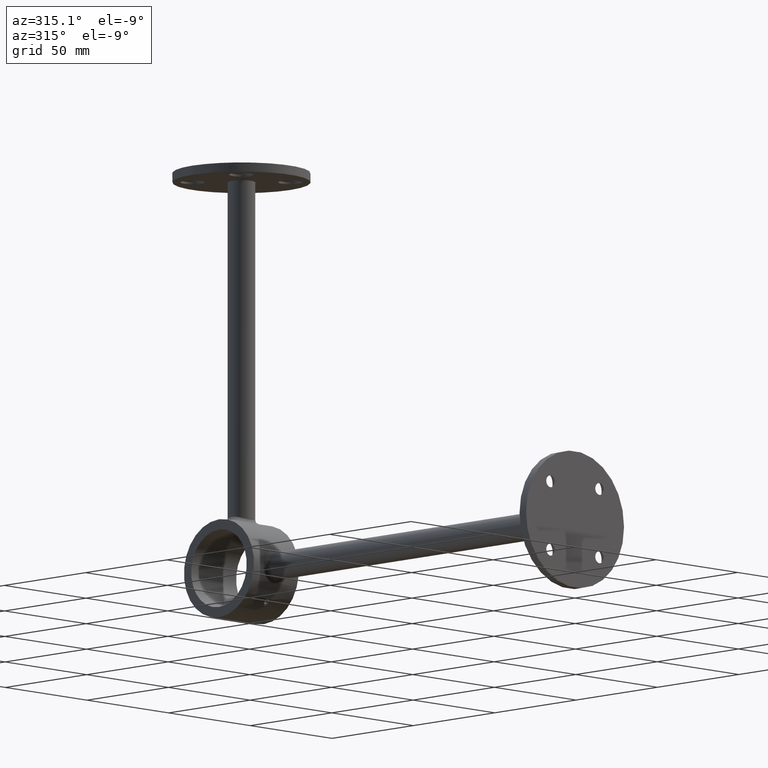
[diagram: clean part render]
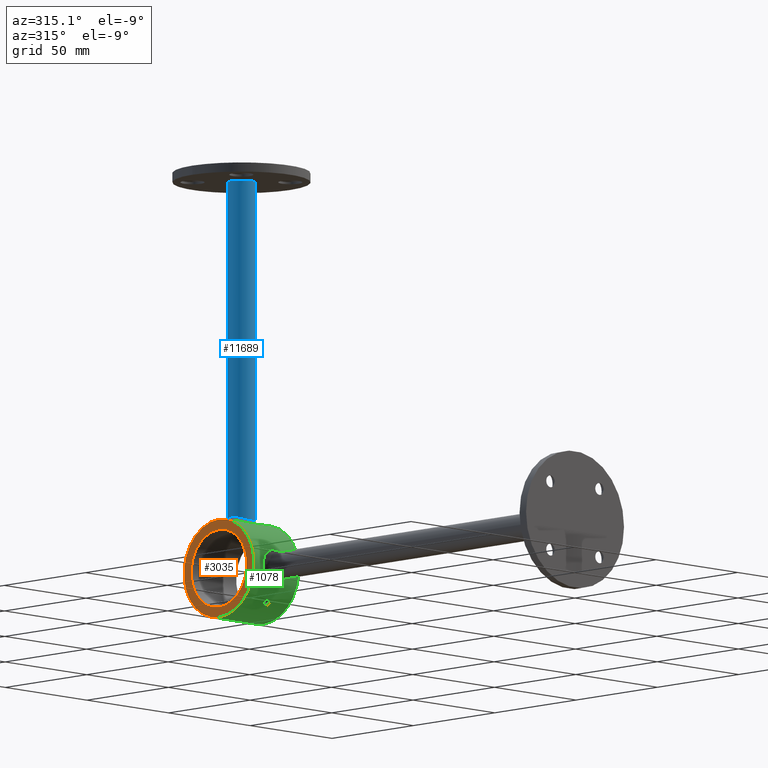
[diagram: same view with three faces highlighted in distinct colors, each labeled with its STEP entity id]
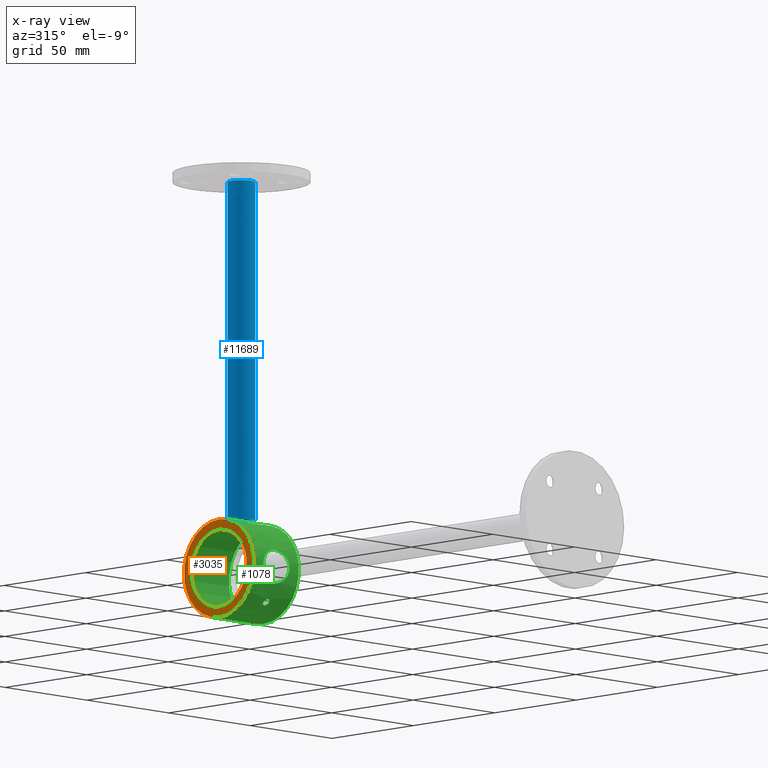
[diagram: x-ray of the same camera — body ghosted, the three highlighted faces saturated]
A machine part, auxiliary view with three faces highlighted in distinct colors.
The next image is the same camera in x-ray (body ghosted, the three faces saturated) — at least one of them is partly hidden behind the body in this view.
Their STEP definitions:

[orange] entity #3035 — the highlighted planar face has unit normal (1, 0, 0).
#309 = AXIS2_PLACEMENT_3D ( 'NONE', #2673, #1532, #3626 ) ;
#839 = DIRECTION ( 'NONE',  ( 1.000000000000000000, 0.000000000000000000, -0.000000000000000000 ) ) ;
#1532 = DIRECTION ( 'NONE',  ( 0.000000000000000000, 0.000000000000000000, 1.000000000000000000 ) ) ;
#2007 = PLANE ( 'NONE',  #3362 ) ;
#2673 = CARTESIAN_POINT ( 'NONE',  ( 0.000000000000000000, 205.0000000000000000, -13.75000000000000000 ) ) ;
#3035 = ADVANCED_FACE ( 'NONE', ( #4517, #12636 ), #2007, .F. ) ;
#3310 = AXIS2_PLACEMENT_3D ( 'NONE', #3590, #10437, #12714 ) ;
#3362 = AXIS2_PLACEMENT_3D ( 'NONE', #10615, #3818, #839 ) ;
#3590 = CARTESIAN_POINT ( 'NONE',  ( 0.000000000000000000, 205.0000000000000000, -13.75000000000000000 ) ) ;
#3626 = DIRECTION ( 'NONE',  ( 1.000000000000000000, 0.000000000000000000, 0.000000000000000000 ) ) ;
#3818 = DIRECTION ( 'NONE',  ( 0.000000000000000000, 0.000000000000000000, 1.000000000000000000 ) ) ;
#3939 = EDGE_CURVE ( 'NONE', #11559, #11559, #8996, .T. ) ;
#4055 = ORIENTED_EDGE ( 'NONE', *, *, #7275, .F. ) ;
#4169 = CIRCLE ( 'NONE', #3310, 17.05000000000000071 ) ;
#4517 = FACE_BOUND ( 'NONE', #5434, .T. ) ;
#4653 = CARTESIAN_POINT ( 'NONE',  ( 21.49999999999999645, 205.0000000000000000, -13.75000000000000000 ) ) ;
#5434 = EDGE_LOOP ( 'NONE', ( #4055 ) ) ;
#5611 = CARTESIAN_POINT ( 'NONE',  ( -17.05000000000000071, 205.0000000000000000, -13.75000000000000000 ) ) ;
#6956 = ORIENTED_EDGE ( 'NONE', *, *, #3939, .F. ) ;
#7275 = EDGE_CURVE ( 'NONE', #10831, #10831, #4169, .T. ) ;
#8996 = CIRCLE ( 'NONE', #309, 21.49999999999999645 ) ;
#10437 = DIRECTION ( 'NONE',  ( 0.000000000000000000, 0.000000000000000000, -1.000000000000000000 ) ) ;
#10615 = CARTESIAN_POINT ( 'NONE',  ( 0.000000000000000000, 205.0000000000000000, -13.75000000000000000 ) ) ;
#10831 = VERTEX_POINT ( 'NONE', #5611 ) ;
#11325 = EDGE_LOOP ( 'NONE', ( #6956 ) ) ;
#11559 = VERTEX_POINT ( 'NONE', #4653 ) ;
#12636 = FACE_OUTER_BOUND ( 'NONE', #11325, .T. ) ;
#12714 = DIRECTION ( 'NONE',  ( -1.000000000000000000, 0.000000000000000000, 0.000000000000000000 ) ) ;

[blue] entity #11689 — the highlighted cylindrical surface (bore or boss wall) has radius 6 mm, axis along (-0, -0, 1).
#182 = CARTESIAN_POINT ( 'NONE',  ( -23.23200228044686000, 207.6792922703322404, 5.382930273431088430 ) ) ;
#220 = CARTESIAN_POINT ( 'NONE',  ( -22.11541549007051799, 210.9609944445898009, 0.7900735914561537454 ) ) ;
#307 = CARTESIAN_POINT ( 'NONE',  ( -22.37738783331207415, 199.6152716029880878, 2.675227745755921038 ) ) ;
#340 = CARTESIAN_POINT ( 'NONE',  ( -23.41187318136881856, 206.5742168623327188, -5.803446260350071384 ) ) ;
#391 = CARTESIAN_POINT ( 'NONE',  ( -23.23217460008701352, 202.3215546612634910, 5.383346539315551738 ) ) ;
#432 = CARTESIAN_POINT ( 'NONE',  ( -23.40821139650064353, 203.4321262906741481, 5.794919355474750233 ) ) ;
#599 = DIRECTION ( 'NONE',  ( 0.000000000000000000, 0.000000000000000000, 1.000000000000000000 ) ) ;
#1278 = CARTESIAN_POINT ( 'NONE',  ( -22.45721954899259742, 210.1968667763163978, -3.023624983693989243 ) ) ;
#1330 = CARTESIAN_POINT ( 'NONE',  ( -23.50445160989924531, 204.9973065693626495, -6.009785875373305331 ) ) ;
#1371 = CARTESIAN_POINT ( 'NONE',  ( -23.42965722650200533, 203.6236061138068578, 5.843324338433294685 ) ) ;
#1412 = CARTESIAN_POINT ( 'NONE',  ( -23.47786673633194710, 205.7900687532467430, -5.951089741580165793 ) ) ;
#1466 = CARTESIAN_POINT ( 'NONE',  ( -22.27780476482568517, 199.3894893423889130, 2.135463886640331044 ) ) ;
#1841 = EDGE_CURVE ( 'NONE', #8493, #8493, #8310, .T. ) ;
#2154 = CARTESIAN_POINT ( 'NONE',  ( -23.40814436953775513, 206.5684359642764889, 5.794767224328479571 ) ) ;
#2189 = CARTESIAN_POINT ( 'NONE',  ( -22.13470285170360086, 210.9201552088591427, -0.9952896390835559437 ) ) ;
#2236 = CARTESIAN_POINT ( 'NONE',  ( -22.98999648611217594, 208.6667347475418239, 4.765094731131961581 ) ) ;
#2283 = CARTESIAN_POINT ( 'NONE',  ( -22.45572308530516281, 199.7993644303828376, 3.017833618714270028 ) ) ;
#2319 = CARTESIAN_POINT ( 'NONE',  ( -23.23264247369581170, 202.3240781013658705, -5.384462246671367858 ) ) ;
#2363 = CARTESIAN_POINT ( 'NONE',  ( -23.49999999999998934, 204.5975847272450778, 6.000000000000000000 ) ) ;
#2414 = CARTESIAN_POINT ( 'NONE',  ( -22.62757746435094930, 200.2404886355729730, -3.658544718912730254 ) ) ;
#2454 = CARTESIAN_POINT ( 'NONE',  ( -22.90024714449507570, 208.9666338140890218, -4.518577991468825772 ) ) ;
#2537 = B_SPLINE_CURVE_WITH_KNOTS ( 'NONE', 3,
 ( #10911, #6164, #10017, #11924, #2154, #6078, #9073, #182, #8016, #2236, #4210, #9971, #11065, #12042, #6204, #5100, #9001, #11962, #6124, #220, #8060, #6963, #9892, #7943, #2189, #3180, #4165, #8912, #1278, #8276, #7207, #11235, #3262, #2454, #12121, #3430, #8309, #12169, #340, #5406, #1412, #3313, #1330, #5323, #8185, #9301, #12219, #4294, #2319, #7173, #9203, #10278, #4430, #3357, #2414, #9165, #11280, #6253, #6374, #3394, #7341, #12256, #6296, #8143, #6333, #12087, #11154, #1466, #307, #2283, #5275, #9123, #10104, #4377, #4254, #11108, #5230, #391, #10141, #7247, #432, #1371, #8233, #2363, #5368 ),
 .UNSPECIFIED., .T., .F.,
 ( 4, 2, 2, 2, 2, 2, 2, 2, 2, 2, 2, 2, 2, 2, 2, 2, 2, 2, 2, 2, 2, 1, 2, 2, 2, 2, 2, 2, 2, 2, 2, 2, 2, 2, 2, 2, 2, 2, 2, 2, 2, 2, 4 ),
 ( 0.000000000000000000, 0.001187452307671914070, 0.001781178461507911112, 0.002374904615343908371, 0.003562356923015901587, 0.004749809230687894804, 0.005937261538359888888, 0.007124713846031881237, 0.007718439999867878279, 0.008312166153703875321, 0.009499618461375885017, 0.01009334461521188900, 0.01068707076904789471, 0.01187452307671990441, 0.01306197538439191237, 0.01365570153822791635, 0.01424942769206391860, 0.01543687999973592483, 0.01662433230740793105, 0.01781178461507993901, 0.01840551076891594473, 0.01899923692275194698, 0.01959296307658795269, 0.02018668923042395147, 0.02137414153809604270, 0.02256159384576812699, 0.02374904615344021822, 0.02434277230727625516, 0.02493649846111229904, 0.02612395076878442843, 0.02731140307645655782, 0.02849885538412868374, 0.02968630769180081660, 0.03028003384563688130, 0.03087375999947293906, 0.03206121230714507192, 0.03324866461481720131, 0.03384239076865326601, 0.03443611692248933764, 0.03562356923016146704, 0.03621729538399753173, 0.03681102153783360337, 0.03799847384550564949 ),
 .UNSPECIFIED. ) ;
#2697 = CYLINDRICAL_SURFACE ( 'NONE', #11121, 6.000000000000001776 ) ;
#3180 = CARTESIAN_POINT ( 'NONE',  ( -22.18997322824790430, 210.8030462785146710, -1.574804921255523515 ) ) ;
#3262 = CARTESIAN_POINT ( 'NONE',  ( -22.76362611710689166, 209.3798411618107309, -4.105474895468668173 ) ) ;
#3313 = CARTESIAN_POINT ( 'NONE',  ( -23.49562677779967856, 205.3936261784861870, -5.990386822540670231 ) ) ;
#3357 = CARTESIAN_POINT ( 'NONE',  ( -22.71742524348599801, 200.4876568949976274, -3.959375909298207930 ) ) ;
#3394 = CARTESIAN_POINT ( 'NONE',  ( -22.18931045032743299, 199.1955315389682255, -1.569784691809101629 ) ) ;
#3430 = CARTESIAN_POINT ( 'NONE',  ( -23.15584726749179012, 208.0232000216219035, -5.197220179369067772 ) ) ;
#4165 = CARTESIAN_POINT ( 'NONE',  ( -22.24361360294536993, 210.6880166858096572, -1.949961243662972299 ) ) ;
#4210 = CARTESIAN_POINT ( 'NONE',  ( -22.89879457550252795, 208.9711951677205946, 4.514334593900458437 ) ) ;
#4254 = CARTESIAN_POINT ( 'NONE',  ( -22.98743739729159330, 201.3357433892950326, 4.755114094102852462 ) ) ;
#4294 = CARTESIAN_POINT ( 'NONE',  ( -23.36014330001747297, 203.0457840456394933, -5.686302110962923706 ) ) ;
#4377 = CARTESIAN_POINT ( 'NONE',  ( -22.89862057797972739, 201.0352529429148944, 4.507623246275788809 ) ) ;
#4430 = CARTESIAN_POINT ( 'NONE',  ( -22.76337795151940924, 200.6194521669355595, -4.104685695237096255 ) ) ;
#4652 = EDGE_LOOP ( 'NONE', ( #8166 ) ) ;
#5100 = CARTESIAN_POINT ( 'NONE',  ( -22.27717667770756904, 210.6119149109403281, 2.131819848057062483 ) ) ;
#5187 = DIRECTION ( 'NONE',  ( 0.000000000000000000, 0.000000000000000000, -1.000000000000000000 ) ) ;
#5230 = CARTESIAN_POINT ( 'NONE',  ( -23.15638704630877598, 201.9789867859064429, 5.198601844443793141 ) ) ;
#5275 = CARTESIAN_POINT ( 'NONE',  ( -22.62753420129775606, 200.2366403497338467, 3.669378001845172488 ) ) ;
#5323 = CARTESIAN_POINT ( 'NONE',  ( -23.49546895362754384, 204.6012294019259343, -5.990039116131847585 ) ) ;
#5368 = CARTESIAN_POINT ( 'NONE',  ( -23.49999999999998934, 205.0000000000000568, 6.000000000000001776 ) ) ;
#5406 = CARTESIAN_POINT ( 'NONE',  ( -23.46438649511200936, 205.9894378383958440, -5.921194944481810829 ) ) ;
#5470 = FACE_OUTER_BOUND ( 'NONE', #4652, .T. ) ;
#6078 = CARTESIAN_POINT ( 'NONE',  ( -23.35746367905899845, 206.9476088182632054, 5.678568345033007780 ) ) ;
#6086 = AXIS2_PLACEMENT_3D ( 'NONE', #12080, #10767, #5187 ) ;
#6115 = EDGE_LOOP ( 'NONE', ( #12556 ) ) ;
#6124 = CARTESIAN_POINT ( 'NONE',  ( -22.17069100130184722, 210.8439154734238912, 1.374070486388245582 ) ) ;
#6164 = CARTESIAN_POINT ( 'NONE',  ( -23.49999999999998934, 205.4024152727549506, 6.000000000000002665 ) ) ;
#6204 = CARTESIAN_POINT ( 'NONE',  ( -22.37692486534887948, 210.3858171521146971, 2.673191525650388201 ) ) ;
#6253 = CARTESIAN_POINT ( 'NONE',  ( -22.37737072117463555, 199.6151748767303502, -2.675837182829041705 ) ) ;
#6296 = CARTESIAN_POINT ( 'NONE',  ( -22.09654849185062275, 199.0003494637873018, 0.4020935192576980399 ) ) ;
#6333 = CARTESIAN_POINT ( 'NONE',  ( -22.17123445798499048, 199.1572431862995529, 1.378987551198780803 ) ) ;
#6374 = CARTESIAN_POINT ( 'NONE',  ( -22.24294311004474523, 199.3105070222773065, -1.945794411969021143 ) ) ;
#6695 = CARTESIAN_POINT ( 'NONE',  ( -23.49999999999999289, 205.0000000000000000, 6.000000000000001776 ) ) ;
#6963 = CARTESIAN_POINT ( 'NONE',  ( -22.09639964183781302, 210.9999588844638083, -0.2001303240931250893 ) ) ;
#7173 = CARTESIAN_POINT ( 'NONE',  ( -23.15524415252115276, 201.9741782429854311, -5.195724335733887145 ) ) ;
#7207 = CARTESIAN_POINT ( 'NONE',  ( -22.62819862634240664, 209.7578385755527961, -3.660681851310004564 ) ) ;
#7247 = CARTESIAN_POINT ( 'NONE',  ( -23.35754558650018708, 203.0529433734035081, 5.678757680838106836 ) ) ;
#7341 = CARTESIAN_POINT ( 'NONE',  ( -22.11580135891655985, 199.0398137483620644, -0.7951464893582820270 ) ) ;
#7456 = FACE_OUTER_BOUND ( 'NONE', #6115, .T. ) ;
#7526 = CARTESIAN_POINT ( 'NONE',  ( -170.9999999999922693, 205.0000000000000000, -6.000000000000001776 ) ) ;
#7587 = VERTEX_POINT ( 'NONE', #6695 ) ;
#7943 = CARTESIAN_POINT ( 'NONE',  ( -22.12047743598207461, 210.9498820193749964, -0.7993035177656903079 ) ) ;
#8016 = CARTESIAN_POINT ( 'NONE',  ( -23.15629516717072889, 208.0213044823604776, 5.198344999166468305 ) ) ;
#8060 = CARTESIAN_POINT ( 'NONE',  ( -22.09634028278895812, 211.0000818488500443, 0.3965512004946226687 ) ) ;
#8143 = CARTESIAN_POINT ( 'NONE',  ( -22.11573983378942998, 199.0396777022446315, 0.7951185499653729005 ) ) ;
#8166 = ORIENTED_EDGE ( 'NONE', *, *, #11956, .T. ) ;
#8185 = CARTESIAN_POINT ( 'NONE',  ( -23.47758370376368831, 204.2052747766121854, -5.950462034328862337 ) ) ;
#8233 = CARTESIAN_POINT ( 'NONE',  ( -23.48168924952568304, 204.2036788781853716, 5.959989134827267776 ) ) ;
#8276 = CARTESIAN_POINT ( 'NONE',  ( -22.58433323651785685, 209.8732902433287961, -3.505492160521256118 ) ) ;
#8309 = CARTESIAN_POINT ( 'NONE',  ( -23.23323920595195702, 207.6731324777339296, -5.385912868133534204 ) ) ;
#8310 = CIRCLE ( 'NONE', #6086, 6.000000000000001776 ) ;
#8493 = VERTEX_POINT ( 'NONE', #7526 ) ;
#8912 = CARTESIAN_POINT ( 'NONE',  ( -22.37795876289088781, 210.3834486542097579, -2.678500188038822394 ) ) ;
#9001 = CARTESIAN_POINT ( 'NONE',  ( -22.24695295079814272, 210.6787318570804928, 1.947093668444941139 ) ) ;
#9073 = CARTESIAN_POINT ( 'NONE',  ( -23.32816771186865878, 207.1353365008361891, 5.610612656191601211 ) ) ;
#9123 = CARTESIAN_POINT ( 'NONE',  ( -22.71812825098703215, 200.4827089503730235, 3.967762997544338255 ) ) ;
#9165 = CARTESIAN_POINT ( 'NONE',  ( -22.58360548480390761, 200.1248107118730957, -3.502869418158224502 ) ) ;
#9203 = CARTESIAN_POINT ( 'NONE',  ( -22.98877456454089696, 201.3289669460097855, -4.761792204062685663 ) ) ;
#9301 = CARTESIAN_POINT ( 'NONE',  ( -23.46405357005797754, 204.0060938188966304, -5.920453964973260597 ) ) ;
#9382 = DIRECTION ( 'NONE',  ( -1.000000000000000000, -0.000000000000000000, -0.000000000000000000 ) ) ;
#9469 = CARTESIAN_POINT ( 'NONE',  ( 500000.0000000000582, 205.0000000000000000, 0.000000000000000000 ) ) ;
#9892 = CARTESIAN_POINT ( 'NONE',  ( -22.10127062030607092, 210.9898965317952388, -0.4013996716263055209 ) ) ;
#9971 = CARTESIAN_POINT ( 'NONE',  ( -22.71790567666994320, 209.5179520322747919, 3.967079192539341381 ) ) ;
#10017 = CARTESIAN_POINT ( 'NONE',  ( -23.48166546058429560, 205.7967531206683987, 5.959936996348661253 ) ) ;
#10104 = CARTESIAN_POINT ( 'NONE',  ( -22.85354669357509039, 200.8920439564405740, 4.377437898144727946 ) ) ;
#10141 = CARTESIAN_POINT ( 'NONE',  ( -23.32829452063561959, 202.8654448938827954, 5.610908736353566795 ) ) ;
#10278 = CARTESIAN_POINT ( 'NONE',  ( -22.89948051104002147, 201.0309603274891970, -4.516337008664819130 ) ) ;
#10767 = DIRECTION ( 'NONE',  ( 1.000000000000000000, 0.000000000000000000, 0.000000000000000000 ) ) ;
#10911 = CARTESIAN_POINT ( 'NONE',  ( -23.49999999999998934, 205.0000000000000568, 6.000000000000001776 ) ) ;
#11065 = CARTESIAN_POINT ( 'NONE',  ( -22.62737701188756390, 209.7637476850922837, 3.668746738827346476 ) ) ;
#11108 = CARTESIAN_POINT ( 'NONE',  ( -23.03127346611558579, 201.4935002009086986, 4.872622974658322725 ) ) ;
#11121 = AXIS2_PLACEMENT_3D ( 'NONE', #9469, #9382, #599 ) ;
#11154 = CARTESIAN_POINT ( 'NONE',  ( -22.24759859933685391, 199.3226906126417930, 1.951202309353264219 ) ) ;
#11235 = CARTESIAN_POINT ( 'NONE',  ( -22.71772577376125213, 209.5114799764656368, -3.960324222772603431 ) ) ;
#11280 = CARTESIAN_POINT ( 'NONE',  ( -22.45632615560130318, 199.8009533363006653, -3.019962385795328164 ) ) ;
#11689 = ADVANCED_FACE ( 'NONE', ( #5470, #7456 ), #2697, .T. ) ;
#11924 = CARTESIAN_POINT ( 'NONE',  ( -23.42960073148892164, 206.3769401542596142, 5.843197065436243953 ) ) ;
#11956 = EDGE_CURVE ( 'NONE', #7587, #7587, #2537, .T. ) ;
#11962 = CARTESIAN_POINT ( 'NONE',  ( -22.19372652779032151, 210.7946995916313710, 1.568638231417604612 ) ) ;
#12042 = CARTESIAN_POINT ( 'NONE',  ( -22.45607889586657890, 210.1997420107994401, 3.019218054729559508 ) ) ;
#12080 = CARTESIAN_POINT ( 'NONE',  ( -170.9999999999922693, 205.0000000000000000, 0.000000000000000000 ) ) ;
#12087 = CARTESIAN_POINT ( 'NONE',  ( -22.19434402049242294, 199.2066303926827970, 1.573499578908042373 ) ) ;
#12121 = CARTESIAN_POINT ( 'NONE',  ( -22.98963237272494808, 208.6679899835690435, -4.764103844797241472 ) ) ;
#12169 = CARTESIAN_POINT ( 'NONE',  ( -23.36085954794381792, 206.9495673003303864, -5.687959388754900480 ) ) ;
#12219 = CARTESIAN_POINT ( 'NONE',  ( -23.41128287042876721, 203.4207589870413813, -5.802111375680433447 ) ) ;
#12256 = CARTESIAN_POINT ( 'NONE',  ( -22.09621331276524003, 198.9996551280771087, -0.3915956752764950810 ) ) ;
#12556 = ORIENTED_EDGE ( 'NONE', *, *, #1841, .T. ) ;

[green] entity #1078 — the highlighted cylindrical surface (bore or boss wall) has radius 21.5 mm, axis along (-1, -0, 0).
#12 = CARTESIAN_POINT ( 'NONE',  ( -21.40955647518758909, 206.9845764156348480, 7.705172953048159634 ) ) ;
#47 = CARTESIAN_POINT ( 'NONE',  ( -21.50000000000000000, 205.5107364267762193, 8.000000000000005329 ) ) ;
#123 = EDGE_CURVE ( 'NONE', #1145, #1145, #3785, .T. ) ;
#309 = AXIS2_PLACEMENT_3D ( 'NONE', #2673, #1532, #3626 ) ;
#416 = CARTESIAN_POINT ( 'NONE',  ( -1.004279793595378445, 183.5219949100666952, 7.929146751002830840 ) ) ;
#455 = CARTESIAN_POINT ( 'NONE',  ( 7.275068487685948604, 184.7680474756338356, 1.011618893457001844 ) ) ;
#471 = CARTESIAN_POINT ( 'NONE',  ( -21.35969831874323432, 202.5360609271338319, 7.538045683824345922 ) ) ;
#486 = CARTESIAN_POINT ( 'NONE',  ( -6.959722824285242027, 184.6575067925736278, -2.489194821945198477 ) ) ;
#511 = CARTESIAN_POINT ( 'NONE',  ( 14.82312033610425850, 189.4264617556854375, -1.566085783592867653 ) ) ;
#534 = CARTESIAN_POINT ( 'NONE',  ( -4.001568191197408808, 183.8747082843544263, 6.703669125014829255 ) ) ;
#554 = CARTESIAN_POINT ( 'NONE',  ( 15.04826313863195963, 189.6438643691632535, 1.639107508593234730 ) ) ;
#570 = CARTESIAN_POINT ( 'NONE',  ( 0.000000000000000000, 205.0000000000000000, 13.75000000000000000 ) ) ;
#576 = CARTESIAN_POINT ( 'NONE',  ( 4.955165613221671705, 184.0760452420031186, 5.910728463973600633 ) ) ;
#598 = CARTESIAN_POINT ( 'NONE',  ( -20.79795414958925548, 199.5480730037849924, 5.343785415492886770 ) ) ;
#615 = CARTESIAN_POINT ( 'NONE',  ( 7.144780334852187664, 184.7218281914851161, -1.754180356244368300 ) ) ;
#632 = CARTESIAN_POINT ( 'NONE',  ( 16.10249075059032009, 190.7534779526913269, -1.005889630021709502 ) ) ;
#653 = CARTESIAN_POINT ( 'NONE',  ( 3.799380985521372711, 183.8344808726184851, -6.858265680818147025 ) ) ;
#675 = VERTEX_POINT ( 'NONE', #1668 ) ;
#678 = CARTESIAN_POINT ( 'NONE',  ( -21.36281718882649017, 202.5327702363710785, -7.550925614475937131 ) ) ;
#725 = CARTESIAN_POINT ( 'NONE',  ( -20.45739427894218210, 198.3850518162019512, -3.433335626029694332 ) ) ;
#767 = CARTESIAN_POINT ( 'NONE',  ( -20.75584329642183690, 210.6179597865634037, -5.154317050206905115 ) ) ;
#806 = CARTESIAN_POINT ( 'NONE',  ( -21.49559124287922174, 204.4973476164181250, -7.985878376441636561 ) ) ;
#807 = CARTESIAN_POINT ( 'NONE',  ( 16.29613487687359452, 190.9752780700713402, 0.4347753693662081975 ) ) ;
#854 = CARTESIAN_POINT ( 'NONE',  ( -21.41281414222896728, 203.0036915947315492, -7.716314680806602766 ) ) ;
#855 = CARTESIAN_POINT ( 'NONE',  ( 15.50478722333062720, 190.1039729538152301, 1.607501560826999354 ) ) ;
#862 = EDGE_LOOP ( 'NONE', ( #5970 ) ) ;
#872 = EDGE_LOOP ( 'NONE', ( #8953 ) ) ;
#898 = CARTESIAN_POINT ( 'NONE',  ( -21.23836310360434254, 208.3749121878893504, 7.119175152718604238 ) ) ;
#1015 = EDGE_CURVE ( 'NONE', #9884, #9884, #1314, .T. ) ;
#1078 = ADVANCED_FACE ( 'NONE', ( #2232, #11436, #7758, #10971, #8523 ), #6181, .T. ) ;
#1145 = VERTEX_POINT ( 'NONE', #12439 ) ;
#1259 = CARTESIAN_POINT ( 'NONE',  ( -1.010245167248635889, 183.5181645471806462, -7.942186847584478571 ) ) ;
#1303 = DIRECTION ( 'NONE',  ( 0.000000000000000000, 0.000000000000000000, 1.000000000000000000 ) ) ;
#1314 = CIRCLE ( 'NONE', #5405, 21.49999999999999645 ) ;
#1395 = CARTESIAN_POINT ( 'NONE',  ( -5.613573215257862792, 184.2430314110258109, -5.159435309253119328 ) ) ;
#1441 = CARTESIAN_POINT ( 'NONE',  ( -4.584997847463081477, 183.9937432590838000, -6.241305037004006628 ) ) ;
#1473 = CARTESIAN_POINT ( 'NONE',  ( 13.99126351972639348, 188.6753393565715555, -0.1082940066373084126 ) ) ;
#1494 = CARTESIAN_POINT ( 'NONE',  ( 7.318942304851437264, 184.7840883562920169, -0.5078162776765372532 ) ) ;
#1520 = CARTESIAN_POINT ( 'NONE',  ( 14.47412375570296916, 189.1016418098241445, 1.311454071060830673 ) ) ;
#1532 = DIRECTION ( 'NONE',  ( 0.000000000000000000, 0.000000000000000000, 1.000000000000000000 ) ) ;
#1538 = CARTESIAN_POINT ( 'NONE',  ( 0.001151370299382786224, 183.4955980068224335, 8.014100086167982084 ) ) ;
#1558 = CARTESIAN_POINT ( 'NONE',  ( 15.12462613610898821, 189.7190462403068523, 1.649892242353340643 ) ) ;
#1574 = CARTESIAN_POINT ( 'NONE',  ( -2.697076815025975627, 183.6686192651996521, -7.441913188597694351 ) ) ;
#1645 = CARTESIAN_POINT ( 'NONE',  ( -20.36827386011523444, 198.1158467920803048, 2.728578330470391666 ) ) ;
#1668 = CARTESIAN_POINT ( 'NONE',  ( 0.000000000000000000, 183.5000000000000000, -8.000000000000000000 ) ) ;
#1685 = CARTESIAN_POINT ( 'NONE',  ( 16.32468614404400853, 191.0087662338714836, 0.2180998014920775274 ) ) ;
#1761 = CARTESIAN_POINT ( 'NONE',  ( -20.42532723760393054, 211.7129925783855526, -3.197898668354393514 ) ) ;
#1816 = CARTESIAN_POINT ( 'NONE',  ( -21.49560532784580502, 205.5022234285702325, -7.985923599830023534 ) ) ;
#1854 = CARTESIAN_POINT ( 'NONE',  ( -21.41285238353270870, 206.9957506565829704, -7.716439723297922271 ) ) ;
#2232 = FACE_BOUND ( 'NONE', #4108, .T. ) ;
#2264 = CARTESIAN_POINT ( 'NONE',  ( -1.743074803139934348, 183.5693758219540825, -7.774608739430969528 ) ) ;
#2394 = CARTESIAN_POINT ( 'NONE',  ( -6.414286989976555553, 184.4773843979023411, -3.887485301507631164 ) ) ;
#2440 = CARTESIAN_POINT ( 'NONE',  ( 6.285825288853330584, 184.4389760795641848, 4.106160099970464827 ) ) ;
#2457 = CARTESIAN_POINT ( 'NONE',  ( -21.49999999999999289, 204.4892635732238944, 8.000000000000001776 ) ) ;
#2458 = CARTESIAN_POINT ( 'NONE',  ( 13.99117450562348886, 188.6752630661531782, 0.2147972022328643316 ) ) ;
#2476 = CARTESIAN_POINT ( 'NONE',  ( -7.308147657734444635, 184.7801699313687891, 0.5067368746080634923 ) ) ;
#2491 = CARTESIAN_POINT ( 'NONE',  ( 14.89750380535731367, 189.4975620803655261, -1.597237960370576193 ) ) ;
#2511 = CARTESIAN_POINT ( 'NONE',  ( -6.884114427535918956, 184.6317121517465409, -2.728741902494178806 ) ) ;
#2529 = AXIS2_PLACEMENT_3D ( 'NONE', #570, #4605, #2601 ) ;
#2556 = CARTESIAN_POINT ( 'NONE',  ( -0.5014758554575062810, 183.5043771689828134, 7.985979618260063972 ) ) ;
#2583 = CARTESIAN_POINT ( 'NONE',  ( -20.67588970120125680, 199.1025078008974845, 4.744898526061832378 ) ) ;
#2584 = CARTESIAN_POINT ( 'NONE',  ( 14.67768550063141397, 189.2893177013119441, -1.483457787621702550 ) ) ;
#2601 = DIRECTION ( 'NONE',  ( -1.000000000000000000, 0.000000000000000000, 0.000000000000000000 ) ) ;
#2616 = CARTESIAN_POINT ( 'NONE',  ( -21.12519551589990385, 209.0020750535870206, -6.703307179517621783 ) ) ;
#2637 = CARTESIAN_POINT ( 'NONE',  ( 4.396047243299281426, 183.9532450818217626, -6.401762465908940491 ) ) ;
#2658 = CARTESIAN_POINT ( 'NONE',  ( -20.63655351477751054, 198.9667613151777914, -4.536299390559292100 ) ) ;
#2659 = CARTESIAN_POINT ( 'NONE',  ( 15.35569772700188373, 189.9500830045890325, 1.650213128476324176 ) ) ;
#2673 = CARTESIAN_POINT ( 'NONE',  ( 0.000000000000000000, 205.0000000000000000, -13.75000000000000000 ) ) ;
#2710 = CARTESIAN_POINT ( 'NONE',  ( -21.23925663464665448, 201.6308519537760162, -7.122334893026599723 ) ) ;
#2734 = CARTESIAN_POINT ( 'NONE',  ( 6.415303818453367946, 184.4777138934739185, -3.885297555071202780 ) ) ;
#2737 = CARTESIAN_POINT ( 'NONE',  ( 21.49999999999999645, 205.0000000000000000, 13.75000000000000000 ) ) ;
#2752 = CARTESIAN_POINT ( 'NONE',  ( -20.33909137740852202, 211.9716863400514626, -2.488301324885860311 ) ) ;
#2958 = CARTESIAN_POINT ( 'NONE',  ( -20.67513647515300690, 210.9041986837391960, 4.755989755909962646 ) ) ;
#3241 = ORIENTED_EDGE ( 'NONE', *, *, #3939, .T. ) ;
#3244 = CARTESIAN_POINT ( 'NONE',  ( -1.984637391429328268, 183.5904490968701737, -7.705154507112746742 ) ) ;
#3378 = CARTESIAN_POINT ( 'NONE',  ( 2.468009020744978521, 183.6372729628661205, 7.550622537346529661 ) ) ;
#3411 = CARTESIAN_POINT ( 'NONE',  ( -7.264011278340726463, 184.7642719345285229, 1.012505900142213200 ) ) ;
#3437 = CARTESIAN_POINT ( 'NONE',  ( -20.21588751580673460, 197.6809910527238117, 0.5066569887423558738 ) ) ;
#3438 = CARTESIAN_POINT ( 'NONE',  ( 14.24124737895117399, 188.8922367447136139, 1.013331150770283573 ) ) ;
#3460 = CARTESIAN_POINT ( 'NONE',  ( 5.606255862709367932, 184.2432465479274697, 5.149460512389458344 ) ) ;
#3486 = CARTESIAN_POINT ( 'NONE',  ( -21.40941938404788303, 203.0139311037947323, 7.704718885934850547 ) ) ;
#3487 = CARTESIAN_POINT ( 'NONE',  ( 14.82102999356711237, 189.4244731632686296, 1.565102320542199221 ) ) ;
#3507 = CARTESIAN_POINT ( 'NONE',  ( 1.258193422267439354, 183.5354265862607690, 7.885708737526528012 ) ) ;
#3528 = CARTESIAN_POINT ( 'NONE',  ( -21.33121846338508831, 202.3016340737122505, 7.441358688170851110 ) ) ;
#3548 = CARTESIAN_POINT ( 'NONE',  ( -3.367357798193286733, 183.7642248110514629, 7.108117862663901221 ) ) ;
#3566 = CARTESIAN_POINT ( 'NONE',  ( -20.63609532630870191, 198.9651722268665708, 4.533897998739135460 ) ) ;
#3567 = CARTESIAN_POINT ( 'NONE',  ( 16.21511413864059747, 190.8818628194182168, -0.7318052951072258061 ) ) ;
#3611 = CARTESIAN_POINT ( 'NONE',  ( -20.45720605408407167, 211.6155306848321516, -3.432004733391291307 ) ) ;
#3613 = CARTESIAN_POINT ( 'NONE',  ( 16.29029115172746245, 190.9687186500466112, -0.4272000871205945960 ) ) ;
#3626 = DIRECTION ( 'NONE',  ( 1.000000000000000000, 0.000000000000000000, 0.000000000000000000 ) ) ;
#3634 = CARTESIAN_POINT ( 'NONE',  ( 2.697044292463345094, 183.6686140459294450, -7.441931737873208164 ) ) ;
#3654 = CARTESIAN_POINT ( 'NONE',  ( -21.46459721126101172, 206.2577295134007613, -7.885785505993671229 ) ) ;
#3783 = CARTESIAN_POINT ( 'NONE',  ( -20.21585452251273551, 212.3191000763274587, 0.5058994083693461041 ) ) ;
#3785 = B_SPLINE_CURVE_WITH_KNOTS ( 'NONE', 3,
 ( #4504, #2457, #8401, #5457, #3486, #471, #3528, #10374, #5505, #10318, #12342, #12385, #4465, #598, #11241, #2583, #3566, #10419, #4553, #1645, #9255, #10282, #11285, #9305, #3437, #12260, #12294, #5581, #9468, #11610, #725, #10594, #5713, #2658, #10630, #5629, #9502, #6764, #7590, #7640, #2710, #678, #854, #8560, #12457, #806, #7684, #1816, #12507, #3654, #1854, #4673, #7722, #8643, #4721, #2616, #11562, #5675, #767, #9637, #12552, #6668, #3611, #1761, #2752, #6591, #9590, #6712, #3783, #7538, #11792, #7893, #8872, #9765, #4797, #12687, #2958, #11655, #10768, #5991, #5816, #5947, #6839, #898, #4929, #10683, #12, #9805, #8822, #47, #8692 ),
 .UNSPECIFIED., .T., .F.,
 ( 4, 2, 2, 2, 2, 2, 2, 2, 2, 2, 2, 2, 2, 2, 2, 2, 2, 2, 2, 2, 2, 2, 2, 1, 2, 2, 2, 2, 2, 2, 2, 2, 2, 2, 2, 2, 2, 2, 2, 2, 2, 2, 2, 2, 2, 4 ),
 ( 0.000000000000000000, 0.001532199756890892340, 0.002298299635336378734, 0.003064399513781864912, 0.004596599270672912727, 0.005362699149118467859, 0.006128799027564023859, 0.006894898906009579859, 0.007660998784455135859, 0.009193198541346203623, 0.009959298419791736204, 0.01072539829823726878, 0.01225759805512834956, 0.01378979781201942860, 0.01532199756891050937, 0.01608809744735603675, 0.01685419732580156066, 0.01762029720424708457, 0.01838639708269261194, 0.01991859683958360772, 0.02145079659647460696, 0.02298299635336560620, 0.02374909623181110582, 0.02451519611025660197, 0.02528129598870210507, 0.02604739586714760122, 0.02757959562403868373, 0.02834569550248418682, 0.02911179538092968644, 0.03064399513782062670, 0.03217619489471157390, 0.03294229477315703536, 0.03370839465160250376, 0.03524059440849346830, 0.03677279416538443285, 0.03830499392227539740, 0.03907109380072088661, 0.03983719367916636889, 0.04136939343605733344, 0.04290159319294830492, 0.04366769307139375944, 0.04443379294983922090, 0.04596599270673013687, 0.04673209258517562609, 0.04749819246362112224, 0.04903039222051219087 ),
 .UNSPECIFIED. ) ;
#3837 = CARTESIAN_POINT ( 'NONE',  ( 15.77531224935213316, 190.3918659955608632, 1.432815191284536827 ) ) ;
#3939 = EDGE_CURVE ( 'NONE', #11559, #11559, #8996, .T. ) ;
#4108 = EDGE_LOOP ( 'NONE', ( #6848 ) ) ;
#4357 = CARTESIAN_POINT ( 'NONE',  ( -6.401968433093860433, 184.4749584733060885, 3.885869416235050888 ) ) ;
#4408 = CARTESIAN_POINT ( 'NONE',  ( 3.369909859869772983, 183.7608643649058706, 7.121905539813867314 ) ) ;
#4435 = CARTESIAN_POINT ( 'NONE',  ( 13.99951803751381618, 188.6824038562298540, -0.2176763014041976640 ) ) ;
#4451 = CARTESIAN_POINT ( 'NONE',  ( -3.798109297865261968, 183.8342812880682686, -6.858943821079503955 ) ) ;
#4465 = CARTESIAN_POINT ( 'NONE',  ( -20.88086767059738236, 199.8747907258848215, 5.717045743890480480 ) ) ;
#4466 = CARTESIAN_POINT ( 'NONE',  ( 15.50679679020365676, 190.1060851713397994, -1.606509606040616323 ) ) ;
#4482 = CARTESIAN_POINT ( 'NONE',  ( -7.319122257489838468, 184.7841535081827260, -0.5055338622708266394 ) ) ;
#4504 = CARTESIAN_POINT ( 'NONE',  ( -21.50000000000000000, 205.0000000000000284, 8.000000000000003553 ) ) ;
#4530 = CARTESIAN_POINT ( 'NONE',  ( 5.449410203866333902, 184.2013746686880893, 5.346947833091346247 ) ) ;
#4553 = CARTESIAN_POINT ( 'NONE',  ( -20.45388986830915812, 198.3727101332338805, 3.432632204271168774 ) ) ;
#4554 = CARTESIAN_POINT ( 'NONE',  ( 15.90356252855878694, 190.5310703735587765, -1.318984380443318560 ) ) ;
#4576 = CARTESIAN_POINT ( 'NONE',  ( 1.743049244972931344, 183.5693731728408125, -7.774617517375567388 ) ) ;
#4593 = CARTESIAN_POINT ( 'NONE',  ( 14.11815452956882311, 188.7849009257669195, -0.7318574690317145581 ) ) ;
#4605 = DIRECTION ( 'NONE',  ( -0.000000000000000000, -0.000000000000000000, -1.000000000000000000 ) ) ;
#4629 = CARTESIAN_POINT ( 'NONE',  ( 16.18777887847596730, 190.8503479859523111, 0.8316895164844034793 ) ) ;
#4649 = CARTESIAN_POINT ( 'NONE',  ( 3.375283464159165803, 183.7616912141130285, -7.118984728781375892 ) ) ;
#4653 = CARTESIAN_POINT ( 'NONE',  ( 21.49999999999999645, 205.0000000000000000, -13.75000000000000000 ) ) ;
#4673 = CARTESIAN_POINT ( 'NONE',  ( -21.36285360191505589, 207.4671437031938126, -7.551066201997635119 ) ) ;
#4676 = CARTESIAN_POINT ( 'NONE',  ( 15.89672572630539804, 190.5240832124928829, 1.313302280432895985 ) ) ;
#4721 = CARTESIAN_POINT ( 'NONE',  ( -21.16325958759764347, 208.7965353739420777, -6.844861492885415011 ) ) ;
#4797 = CARTESIAN_POINT ( 'NONE',  ( -20.45412442863412750, 211.6265770114393945, 3.434421988870011599 ) ) ;
#4929 = CARTESIAN_POINT ( 'NONE',  ( -21.33139085414333280, 207.6969963156994083, 7.441947759293595865 ) ) ;
#5173 = CARTESIAN_POINT ( 'NONE',  ( -2.462293417512100291, 183.6401131422650224, -7.538682916295158520 ) ) ;
#5351 = CARTESIAN_POINT ( 'NONE',  ( 6.971843793152251223, 184.6609596746731370, 2.487946974443301595 ) ) ;
#5388 = CARTESIAN_POINT ( 'NONE',  ( -3.796007887953674498, 183.8366455746918575, 6.845211559508108223 ) ) ;
#5405 = AXIS2_PLACEMENT_3D ( 'NONE', #11085, #1303, #8158 ) ;
#5430 = CARTESIAN_POINT ( 'NONE',  ( -5.617617400472113331, 184.2440634737145899, 5.154764266980342846 ) ) ;
#5457 = CARTESIAN_POINT ( 'NONE',  ( -21.43051987290784055, 203.2556219663130150, 7.774265745116189841 ) ) ;
#5458 = CARTESIAN_POINT ( 'NONE',  ( 16.32468614404401208, 191.0087662338714267, -1.897353801849632760E-16 ) ) ;
#5481 = CARTESIAN_POINT ( 'NONE',  ( -6.712812238927152286, 184.5746134160254712, 3.198351734531855506 ) ) ;
#5505 = CARTESIAN_POINT ( 'NONE',  ( -21.16531039975216544, 201.1994626568476860, 6.857499099792822683 ) ) ;
#5506 = CARTESIAN_POINT ( 'NONE',  ( 15.77929619413100859, 190.3950947543663688, -1.441904370524308199 ) ) ;
#5523 = CARTESIAN_POINT ( 'NONE',  ( 6.402119036029864318, 184.4750058033461357, 3.885564086567987463 ) ) ;
#5542 = CARTESIAN_POINT ( 'NONE',  ( 14.41324321000920250, 189.0464933447607052, -1.244249581103633595 ) ) ;
#5581 = CARTESIAN_POINT ( 'NONE',  ( -20.29377567283446027, 197.8992109635775307, -2.004139337117661235 ) ) ;
#5607 = CARTESIAN_POINT ( 'NONE',  ( 2.462560405715651157, 183.6401427132723256, -7.538583249913996198 ) ) ;
#5629 = CARTESIAN_POINT ( 'NONE',  ( -20.75691280228938496, 199.3943335768089185, -5.150226946304898412 ) ) ;
#5653 = CARTESIAN_POINT ( 'NONE',  ( 5.451095528626318298, 184.2018276140643707, -5.344799288773800505 ) ) ;
#5675 = CARTESIAN_POINT ( 'NONE',  ( -20.92371562138223950, 209.9562715527488876, -5.909831909099559688 ) ) ;
#5713 = CARTESIAN_POINT ( 'NONE',  ( -20.56117096965325786, 198.7146552717453858, -4.107038482670434476 ) ) ;
#5799 = EDGE_CURVE ( 'NONE', #675, #675, #9504, .T. ) ;
#5816 = CARTESIAN_POINT ( 'NONE',  ( -21.00628287555541363, 209.5848780384219197, 6.241409889457235849 ) ) ;
#5947 = CARTESIAN_POINT ( 'NONE',  ( -21.04749446307160099, 209.3924703668398593, 6.404650966307689153 ) ) ;
#5970 = ORIENTED_EDGE ( 'NONE', *, *, #5799, .T. ) ;
#5991 = CARTESIAN_POINT ( 'NONE',  ( -20.92328414854352303, 209.9498694239709948, 5.898942420630228334 ) ) ;
#6157 = EDGE_LOOP ( 'NONE', ( #6671 ) ) ;
#6181 = CYLINDRICAL_SURFACE ( 'NONE', #2529, 21.49999999999999645 ) ;
#6320 = CARTESIAN_POINT ( 'NONE',  ( 6.615360425189392934, 184.5427391528335761, 3.432387263035874714 ) ) ;
#6355 = CARTESIAN_POINT ( 'NONE',  ( 0.5034310480631104534, 183.5044269227791460, 7.985819870968009049 ) ) ;
#6378 = CARTESIAN_POINT ( 'NONE',  ( 14.15721382054154631, 188.8189344289647806, -0.8282876545004860258 ) ) ;
#6403 = CARTESIAN_POINT ( 'NONE',  ( -1.257011234476971495, 183.5353605157536379, 7.885922822631334483 ) ) ;
#6425 = CARTESIAN_POINT ( 'NONE',  ( 14.60688319572122396, 189.2235312044681166, -1.431813023377934924 ) ) ;
#6446 = CARTESIAN_POINT ( 'NONE',  ( -3.144836254531957476, 183.7300190454932647, 7.228904019328442843 ) ) ;
#6466 = CARTESIAN_POINT ( 'NONE',  ( 14.89687357838484516, 189.4969589243986263, 1.596980476747949851 ) ) ;
#6479 = CARTESIAN_POINT ( 'NONE',  ( 1.997095347308015301, 183.5872593939885746, 7.716071675001002106 ) ) ;
#6499 = CARTESIAN_POINT ( 'NONE',  ( 16.32468614404401208, 191.0087662338713983, -0.1090499007460669495 ) ) ;
#6519 = CARTESIAN_POINT ( 'NONE',  ( 5.896767355256612220, 184.3239033046963868, -4.745975073278100531 ) ) ;
#6544 = CARTESIAN_POINT ( 'NONE',  ( 14.24713279705904689, 188.8980500175400721, -1.006913599549112304 ) ) ;
#6565 = CARTESIAN_POINT ( 'NONE',  ( 6.959300582067415419, 184.6573624180877005, -2.490576859766477913 ) ) ;
#6591 = CARTESIAN_POINT ( 'NONE',  ( -20.29380945702494188, 212.1006911076661368, -2.004314707227188741 ) ) ;
#6668 = CARTESIAN_POINT ( 'NONE',  ( -20.52497007080078717, 211.4021972301659105, -3.885418582553213707 ) ) ;
#6671 = ORIENTED_EDGE ( 'NONE', *, *, #1015, .F. ) ;
#6712 = CARTESIAN_POINT ( 'NONE',  ( -20.21581917265508110, 212.3191977143132476, -0.5042089665738130888 ) ) ;
#6764 = CARTESIAN_POINT ( 'NONE',  ( -20.92411054988740915, 200.0454903179705752, -5.911383649386789507 ) ) ;
#6839 = CARTESIAN_POINT ( 'NONE',  ( -21.16573748430510804, 208.7980038351564929, 6.859012293075970490 ) ) ;
#6848 = ORIENTED_EDGE ( 'NONE', *, *, #123, .T. ) ;
#7108 = CARTESIAN_POINT ( 'NONE',  ( -3.794707603699265519E-16, 183.4999999999999716, -8.000000000000000000 ) ) ;
#7270 = CARTESIAN_POINT ( 'NONE',  ( -4.392586928798034585, 183.9525298246857403, -6.404555805828644921 ) ) ;
#7321 = CARTESIAN_POINT ( 'NONE',  ( 7.319354109489434101, 184.7842374502505152, 0.5006751240592051122 ) ) ;
#7364 = CARTESIAN_POINT ( 'NONE',  ( 5.897996806017178351, 184.3242520729115768, 4.744177322628893023 ) ) ;
#7383 = CARTESIAN_POINT ( 'NONE',  ( 14.41120724564160049, 189.0446593040956600, 1.241731105653337330 ) ) ;
#7399 = CARTESIAN_POINT ( 'NONE',  ( -2.466511231234544965, 183.6370727231078206, 7.551314229206416151 ) ) ;
#7421 = CARTESIAN_POINT ( 'NONE',  ( 16.05619757417469629, 190.7012474016877945, -1.090765773596986010 ) ) ;
#7431 = VERTEX_POINT ( 'NONE', #10661 ) ;
#7445 = CARTESIAN_POINT ( 'NONE',  ( -7.145155406686241939, 184.7219604749223265, -1.752354529682578432 ) ) ;
#7488 = CARTESIAN_POINT ( 'NONE',  ( 0.5109250322210742157, 183.5000000000000000, -7.999999999999998224 ) ) ;
#7523 = CARTESIAN_POINT ( 'NONE',  ( 1.010070064940967516, 183.5181540372960853, -7.942221020357404626 ) ) ;
#7538 = CARTESIAN_POINT ( 'NONE',  ( -20.23173065020790773, 212.2756861690387495, 1.006988453273468087 ) ) ;
#7590 = CARTESIAN_POINT ( 'NONE',  ( -21.00751059852128932, 200.4068828192127683, -6.250885576707664981 ) ) ;
#7619 = CARTESIAN_POINT ( 'NONE',  ( 7.089828173093572161, 184.7024852541843245, -2.003031154866746100 ) ) ;
#7640 = CARTESIAN_POINT ( 'NONE',  ( -21.16480216432204386, 201.1969254111263865, -6.855540211832165554 ) ) ;
#7665 = CARTESIAN_POINT ( 'NONE',  ( 5.605525020134277447, 184.2430510661077392, -5.150385372246356397 ) ) ;
#7684 = CARTESIAN_POINT ( 'NONE',  ( -21.50440171041346460, 204.9996117626668308, -8.014098998301898646 ) ) ;
#7722 = CARTESIAN_POINT ( 'NONE',  ( -21.26989426048604770, 208.1454214606327469, -7.228599521968090968 ) ) ;
#7723 = CARTESIAN_POINT ( 'NONE',  ( 15.71073219095419127, 190.3223671467613656, 1.483430758539423744 ) ) ;
#7758 = FACE_OUTER_BOUND ( 'NONE', #12650, .T. ) ;
#7893 = CARTESIAN_POINT ( 'NONE',  ( -20.29737779914028195, 212.0902205250157522, 2.001404929588528780 ) ) ;
#8158 = DIRECTION ( 'NONE',  ( 1.000000000000000000, 0.000000000000000000, 0.000000000000000000 ) ) ;
#8259 = CARTESIAN_POINT ( 'NONE',  ( -3.375008600754274557, 183.7616519818164420, -7.119121731944578535 ) ) ;
#8294 = CARTESIAN_POINT ( 'NONE',  ( -7.100589871428729438, 184.7061549919040999, 2.004746869850338786 ) ) ;
#8313 = CARTESIAN_POINT ( 'NONE',  ( 14.03166180245417394, 188.7100363335148927, -0.4291414347306145571 ) ) ;
#8330 = CARTESIAN_POINT ( 'NONE',  ( 7.275510861835453369, 184.7682058775039877, -1.008505513780251439 ) ) ;
#8357 = CARTESIAN_POINT ( 'NONE',  ( 14.60632181303440369, 189.2230099596717707, 1.431398474734998150 ) ) ;
#8378 = CARTESIAN_POINT ( 'NONE',  ( -4.955860159225222716, 184.0761863795464706, 5.910245292871419309 ) ) ;
#8401 = CARTESIAN_POINT ( 'NONE',  ( -21.48180228764677580, 203.9889028412235348, 7.942081665155285464 ) ) ;
#8420 = CARTESIAN_POINT ( 'NONE',  ( -4.949992147167090906, 184.0767448691769630, -5.898819702681567634 ) ) ;
#8452 = CARTESIAN_POINT ( 'NONE',  ( 1.984691005851717316, 183.5904528615745051, -7.705142433359222665 ) ) ;
#8523 = FACE_BOUND ( 'NONE', #872, .T. ) ;
#8539 = CARTESIAN_POINT ( 'NONE',  ( -3.794707603699265519E-16, 183.4999999999999716, -8.000000000000000000 ) ) ;
#8560 = CARTESIAN_POINT ( 'NONE',  ( -21.46462026924825039, 203.7426055186920451, -7.885860912987421756 ) ) ;
#8643 = CARTESIAN_POINT ( 'NONE',  ( -21.23568440608639918, 208.3679288921734667, -7.107794063289015085 ) ) ;
#8692 = CARTESIAN_POINT ( 'NONE',  ( -21.50000000000000000, 205.0000000000000284, 8.000000000000003553 ) ) ;
#8822 = CARTESIAN_POINT ( 'NONE',  ( -21.48183659992813688, 206.0102135612903567, 7.942190466839419649 ) ) ;
#8872 = CARTESIAN_POINT ( 'NONE',  ( -20.34252300071358377, 211.9596358079878939, 2.489484548900374961 ) ) ;
#8953 = ORIENTED_EDGE ( 'NONE', *, *, #11701, .T. ) ;
#8996 = CIRCLE ( 'NONE', #309, 21.49999999999999645 ) ;
#9229 = CARTESIAN_POINT ( 'NONE',  ( 6.712685037020313494, 184.5745709616268471, 3.198703431552613274 ) ) ;
#9255 = CARTESIAN_POINT ( 'NONE',  ( -20.34251731817067110, 198.0403482532508121, 2.489403862000426404 ) ) ;
#9280 = CARTESIAN_POINT ( 'NONE',  ( -7.275727259009919123, 184.7682842072713640, -1.006640614982952098 ) ) ;
#9305 = CARTESIAN_POINT ( 'NONE',  ( -20.23174551513294617, 197.7243549456675566, 1.007335821167354872 ) ) ;
#9306 = CARTESIAN_POINT ( 'NONE',  ( 14.14855881441632235, 188.8112673611133232, 0.8291819502027307776 ) ) ;
#9328 = CARTESIAN_POINT ( 'NONE',  ( 3.803815393204966977, 183.8353314620761125, 6.855049637885261227 ) ) ;
#9352 = CARTESIAN_POINT ( 'NONE',  ( 14.67574966499137545, 189.2875101246665110, 1.482148064489121175 ) ) ;
#9362 = CARTESIAN_POINT ( 'NONE',  ( -1.995085407857207338, 183.5870848331099410, 7.716647251698288024 ) ) ;
#9403 = CARTESIAN_POINT ( 'NONE',  ( 6.033763160655670532, 184.3635999665680174, 4.535466258672562034 ) ) ;
#9468 = CARTESIAN_POINT ( 'NONE',  ( -20.33914541900869111, 198.0284612971670128, -2.488966964271484450 ) ) ;
#9502 = CARTESIAN_POINT ( 'NONE',  ( -20.79878537279970629, 199.5512002110991716, -5.347690510825703569 ) ) ;
#9504 = B_SPLINE_CURVE_WITH_KNOTS ( 'NONE', 3,
 ( #7108, #11054, #1259, #2264, #3244, #5173, #1574, #8259, #4451, #7270, #1441, #8420, #11218, #1395, #10347, #2394, #11304, #2511, #486, #10261, #7445, #9280, #4482, #10397, #2476, #3411, #10295, #8294, #10223, #5481, #12316, #4357, #11346, #12278, #5430, #8378, #12240, #534, #5388, #3548, #6446, #7399, #9362, #6403, #416, #2556, #1538, #6355, #11380, #3507, #6479, #3378, #4408, #9328, #11262, #576, #4530, #3460, #7364, #9403, #2440, #5523, #6320, #9229, #5351, #12198, #455, #7321, #1494, #8330, #615, #7619, #6565, #10575, #11500, #2734, #11463, #6519, #7665, #5653, #12407, #10477, #12362, #2637, #653, #4649, #3634, #5607, #8452, #4576, #7523, #7488, #8539 ),
 .UNSPECIFIED., .T., .F.,
 ( 4, 2, 2, 2, 2, 2, 2, 2, 2, 2, 2, 2, 2, 2, 2, 2, 2, 2, 2, 2, 2, 2, 2, 1, 2, 2, 2, 2, 2, 2, 2, 2, 2, 2, 2, 2, 2, 2, 2, 2, 2, 2, 2, 2, 2, 2, 4 ),
 ( 0.000000000000000000, 0.001505417360139218574, 0.002258126040208831113, 0.003010834720278444086, 0.004516252080417670033, 0.005268960760487282138, 0.006021669440556893377, 0.007527086800696119323, 0.009032504160835343535, 0.009785212840904961712, 0.01053792152097457815, 0.01204333888111381277, 0.01279604756118342922, 0.01354875624125304913, 0.01505417360139227854, 0.01580688228146188631, 0.01655959096153149582, 0.01806500832167072870, 0.01957042568180995812, 0.02032313436187957456, 0.02107584304194918753, 0.02258126040208843083, 0.02333396908215805074, 0.02408667776222767065, 0.02483938644229728709, 0.02559209512236690701, 0.02709751248250614683, 0.02860292984264537625, 0.03010834720278461607, 0.03086105588285422210, 0.03161376456292383508, 0.03236647324299344458, 0.03311918192306306102, 0.03462459928320227309, 0.03613001664334148516, 0.03763543400348070417, 0.03838814268355030673, 0.03914085136361990930, 0.04064626872375912831, 0.04139897740382873781, 0.04215168608389834731, 0.04290439476396795682, 0.04365710344403756632, 0.04516252080417679921, 0.04591522948424641565, 0.04666793816431603209, 0.04817335552445526498 ),
 .UNSPECIFIED. ) ;
#9590 = CARTESIAN_POINT ( 'NONE',  ( -20.23210598355775147, 212.2746411564152140, -1.014802088708562255 ) ) ;
#9637 = CARTESIAN_POINT ( 'NONE',  ( -20.67389177522226973, 210.9084020923628486, -4.749050623540999716 ) ) ;
#9638 = CARTESIAN_POINT ( 'NONE',  ( 16.32468614404401208, 191.0087662338714267, -1.897353801849632760E-16 ) ) ;
#9765 = CARTESIAN_POINT ( 'NONE',  ( -20.36831920192447143, 211.8840217276066653, 2.729020544599338738 ) ) ;
#9805 = CARTESIAN_POINT ( 'NONE',  ( -21.43062846564529877, 206.7430210422796790, 7.774622836895392020 ) ) ;
#9884 = VERTEX_POINT ( 'NONE', #2737 ) ;
#10223 = CARTESIAN_POINT ( 'NONE',  ( -6.971555834230490412, 184.6608635805310712, 2.488742394573369321 ) ) ;
#10261 = CARTESIAN_POINT ( 'NONE',  ( -7.090294647972707587, 184.7026481163183007, -2.001092330993788693 ) ) ;
#10282 = CARTESIAN_POINT ( 'NONE',  ( -20.29741661232040073, 197.9098912461089981, 2.001843788561502802 ) ) ;
#10295 = CARTESIAN_POINT ( 'NONE',  ( -7.231092786029327257, 184.7524463810181032, 1.262598201578927659 ) ) ;
#10318 = CARTESIAN_POINT ( 'NONE',  ( -21.04653232093776438, 200.6028885200211676, 6.400888916975119081 ) ) ;
#10347 = CARTESIAN_POINT ( 'NONE',  ( -5.904323074715526865, 184.3248990868090971, -4.755807191854215077 ) ) ;
#10374 = CARTESIAN_POINT ( 'NONE',  ( -21.23811355934475031, 201.6234971257786412, 7.118291112695215084 ) ) ;
#10397 = CARTESIAN_POINT ( 'NONE',  ( -7.319162257229167245, 184.7841679900985810, 0.2520744258511105618 ) ) ;
#10419 = CARTESIAN_POINT ( 'NONE',  ( -20.52210697822230046, 198.5841266030312227, 3.884169390268104038 ) ) ;
#10420 = CARTESIAN_POINT ( 'NONE',  ( 16.18174181307490045, 190.8435586847442949, -0.8265608315983653531 ) ) ;
#10454 = CARTESIAN_POINT ( 'NONE',  ( 14.47507971848670216, 189.1025136737504511, -1.312415137314913993 ) ) ;
#10477 = CARTESIAN_POINT ( 'NONE',  ( 4.951944216105949259, 184.0772133271883320, -5.896820635649503650 ) ) ;
#10575 = CARTESIAN_POINT ( 'NONE',  ( 6.883766581364254122, 184.6315953044396565, -2.729744139457262797 ) ) ;
#10594 = CARTESIAN_POINT ( 'NONE',  ( -20.52513726095616065, 198.5983392328755883, -3.886465421016041422 ) ) ;
#10595 = CARTESIAN_POINT ( 'NONE',  ( 16.10664787627106165, 190.7574872212193782, 1.015550118584736206 ) ) ;
#10630 = CARTESIAN_POINT ( 'NONE',  ( -20.67590385566237643, 199.1025492896217486, -4.744988157618641900 ) ) ;
#10661 = CARTESIAN_POINT ( 'NONE',  ( 16.32468614404401208, 191.0087662338713983, 0.000000000000000000 ) ) ;
#10683 = CARTESIAN_POINT ( 'NONE',  ( -21.35989542853973688, 207.4622183687862105, 7.538711876517147026 ) ) ;
#10768 = CARTESIAN_POINT ( 'NONE',  ( -20.88149805632173894, 210.1226483355681864, 5.719798845709650692 ) ) ;
#10971 = FACE_OUTER_BOUND ( 'NONE', #6157, .T. ) ;
#11054 = CARTESIAN_POINT ( 'NONE',  ( -0.5109250322210695527, 183.4999999999999432, -8.000000000000000000 ) ) ;
#11085 = CARTESIAN_POINT ( 'NONE',  ( 0.000000000000000000, 205.0000000000000000, 13.75000000000000000 ) ) ;
#11218 = CARTESIAN_POINT ( 'NONE',  ( -5.122772060056607124, 184.1185322897938192, -5.719666797146437887 ) ) ;
#11241 = CARTESIAN_POINT ( 'NONE',  ( -20.75673382345080498, 199.3936794457391102, 5.149350403802277043 ) ) ;
#11262 = CARTESIAN_POINT ( 'NONE',  ( 4.593801247615415306, 183.9926394812871990, 6.250285495648700618 ) ) ;
#11285 = CARTESIAN_POINT ( 'NONE',  ( -20.27808609453871114, 197.8549766460206456, 1.752995614397636404 ) ) ;
#11286 = CARTESIAN_POINT ( 'NONE',  ( 14.02413728878361709, 188.7033637126031635, 0.4319392019947639327 ) ) ;
#11304 = CARTESIAN_POINT ( 'NONE',  ( -6.626684862602666648, 184.5459106041204222, -3.434175719869497101 ) ) ;
#11328 = CARTESIAN_POINT ( 'NONE',  ( 16.31770499017235920, 191.0006090852742489, -0.2162694626719153801 ) ) ;
#11346 = CARTESIAN_POINT ( 'NONE',  ( -6.285700273730607357, 184.4389389668969841, 4.106368155286467925 ) ) ;
#11362 = CARTESIAN_POINT ( 'NONE',  ( 16.26952291122253058, 190.9445971875553312, -0.5320068282976635476 ) ) ;
#11380 = CARTESIAN_POINT ( 'NONE',  ( 1.005534730801142640, 183.5220577185930892, 7.928943560676991353 ) ) ;
#11436 = FACE_BOUND ( 'NONE', #862, .T. ) ;
#11444 = CARTESIAN_POINT ( 'NONE',  ( 14.05539600106479270, 188.7304711635145225, -0.5319882143733849489 ) ) ;
#11463 = CARTESIAN_POINT ( 'NONE',  ( 6.034135780544036542, 184.3637020540927836, -4.534999144737777321 ) ) ;
#11500 = CARTESIAN_POINT ( 'NONE',  ( 6.626794930509713133, 184.5459491126008231, -3.433775863804568562 ) ) ;
#11559 = VERTEX_POINT ( 'NONE', #4653 ) ;
#11562 = CARTESIAN_POINT ( 'NONE',  ( -21.00728627165149476, 209.5941141451910710, -6.249980140885172730 ) ) ;
#11610 = CARTESIAN_POINT ( 'NONE',  ( -20.42555692789667177, 198.2877037274548400, -3.199677719307561841 ) ) ;
#11655 = CARTESIAN_POINT ( 'NONE',  ( -20.75700244145500761, 210.6134479448641912, 5.159596647144145010 ) ) ;
#11701 = EDGE_CURVE ( 'NONE', #7431, #7431, #12225, .T. ) ;
#11792 = CARTESIAN_POINT ( 'NONE',  ( -20.27806288058276607, 212.1450891802942067, 1.752676117461503535 ) ) ;
#12198 = CARTESIAN_POINT ( 'NONE',  ( 7.101038302968285976, 184.7063118317909982, 2.003088679632171409 ) ) ;
#12222 = CARTESIAN_POINT ( 'NONE',  ( 15.04940168825840807, 189.6449776975673842, -1.639341258997878858 ) ) ;
#12225 = B_SPLINE_CURVE_WITH_KNOTS ( 'NONE', 3,
 ( #5458, #6499, #11328, #3613, #11362, #3567, #10420, #632, #7421, #4554, #5506, #4466, #12261, #12296, #12222, #2491, #511, #2584, #6425, #10454, #5542, #12386, #6544, #6378, #4593, #11444, #8313, #4435, #1473, #2458, #11286, #9306, #3438, #7383, #1520, #8357, #9352, #3487, #6466, #554, #1558, #2659, #855, #7723, #3837, #4676, #12420, #10595, #4629, #807, #1685, #9638 ),
 .UNSPECIFIED., .T., .F.,
 ( 4, 2, 2, 2, 2, 2, 2, 2, 2, 2, 2, 2, 2, 2, 2, 2, 2, 2, 2, 2, 2, 2, 2, 2, 2, 4 ),
 ( 0.000000000000000000, 0.0003224970200018727564, 0.0006449940400037455128, 0.0009674910600056184319, 0.001289988080007491026, 0.001934982120011280232, 0.002579976160015072691, 0.002902473180016937587, 0.003224970200018802049, 0.003547467220020666945, 0.003869964240022531841, 0.004192461260024396737, 0.004514958280026261199, 0.004837455300028125661, 0.005159952320029990991, 0.005804946360033719915, 0.006449940400037449707, 0.006772437420039295088, 0.007094934440041139601, 0.007417431460042985848, 0.007739928480044830361, 0.008384922520048460406, 0.008707419540050272827, 0.009029916560052088717, 0.009674910600055668455, 0.01031990464005924819 ),
 .UNSPECIFIED. ) ;
#12240 = CARTESIAN_POINT ( 'NONE',  ( -4.593666592901501033, 183.9926151205591225, 6.250375059690505886 ) ) ;
#12260 = CARTESIAN_POINT ( 'NONE',  ( -20.21578639262470034, 197.6807117456798437, -0.5018133905655929317 ) ) ;
#12261 = CARTESIAN_POINT ( 'NONE',  ( 15.35565891301858343, 189.9500799688740926, -1.649883473988882132 ) ) ;
#12278 = CARTESIAN_POINT ( 'NONE',  ( -5.908104501749697590, 184.3260227302757528, 4.749494798956510166 ) ) ;
#12294 = CARTESIAN_POINT ( 'NONE',  ( -20.23199985150080593, 197.7250623364886621, -1.012732850360599235 ) ) ;
#12296 = CARTESIAN_POINT ( 'NONE',  ( 15.12730946001446952, 189.7217115847350328, -1.650057902001862420 ) ) ;
#12316 = CARTESIAN_POINT ( 'NONE',  ( -6.615334179132569048, 184.5427303095149512, 3.432457757512740848 ) ) ;
#12342 = CARTESIAN_POINT ( 'NONE',  ( -21.00528563398051318, 200.4105866792806694, 6.237386893119341025 ) ) ;
#12362 = CARTESIAN_POINT ( 'NONE',  ( 4.588390050508875717, 183.9944904746444365, -6.238286967834287822 ) ) ;
#12385 = CARTESIAN_POINT ( 'NONE',  ( -20.92256296740265498, 200.0471121485969093, 5.895872973633331959 ) ) ;
#12386 = CARTESIAN_POINT ( 'NONE',  ( 14.29835694035924654, 188.9434454743329468, -1.090290505297300649 ) ) ;
#12407 = CARTESIAN_POINT ( 'NONE',  ( 5.124303752900921438, 184.1189097960545098, -5.718015961433061456 ) ) ;
#12420 = CARTESIAN_POINT ( 'NONE',  ( 15.95384077343615914, 190.5871313198299788, 1.243699309495075012 ) ) ;
#12439 = CARTESIAN_POINT ( 'NONE',  ( -21.49999999999999645, 205.0000000000000000, 8.000000000000001776 ) ) ;
#12457 = CARTESIAN_POINT ( 'NONE',  ( -21.47797935354843446, 203.9952594544211308, -7.929063434988659509 ) ) ;
#12507 = CARTESIAN_POINT ( 'NONE',  ( -21.47797076195885424, 206.0050118064771141, -7.929035747329969297 ) ) ;
#12552 = CARTESIAN_POINT ( 'NONE',  ( -20.56098587968272184, 211.2859457331532553, -4.105918693452507817 ) ) ;
#12650 = EDGE_LOOP ( 'NONE', ( #3241 ) ) ;
#12687 = CARTESIAN_POINT ( 'NONE',  ( -20.52265241425923037, 211.4141693341203165, 3.887714859724900940 ) ) ;